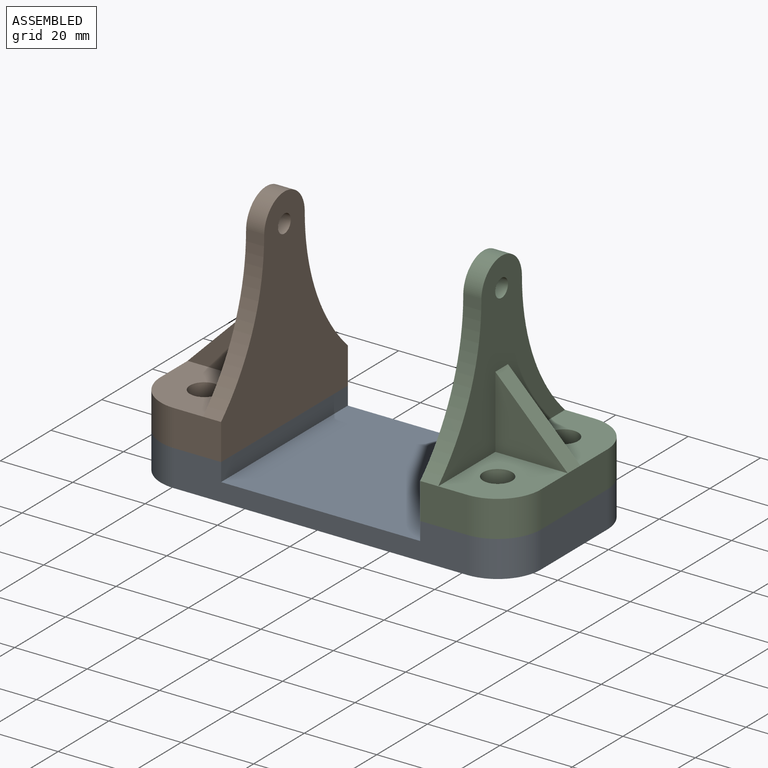
[diagram: assembled view]
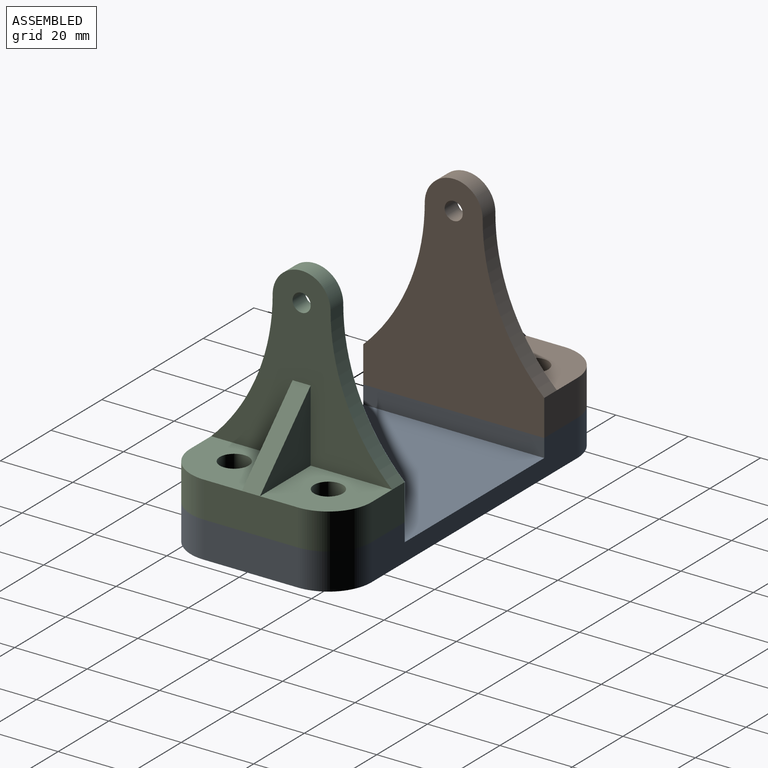
[diagram: assembled view, second angle]
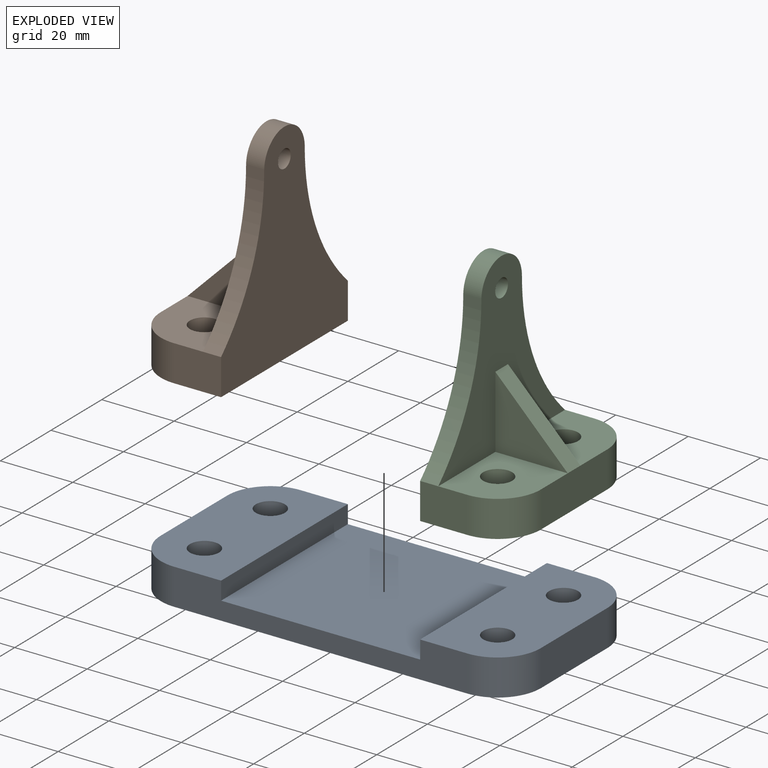
[diagram: exploded view]
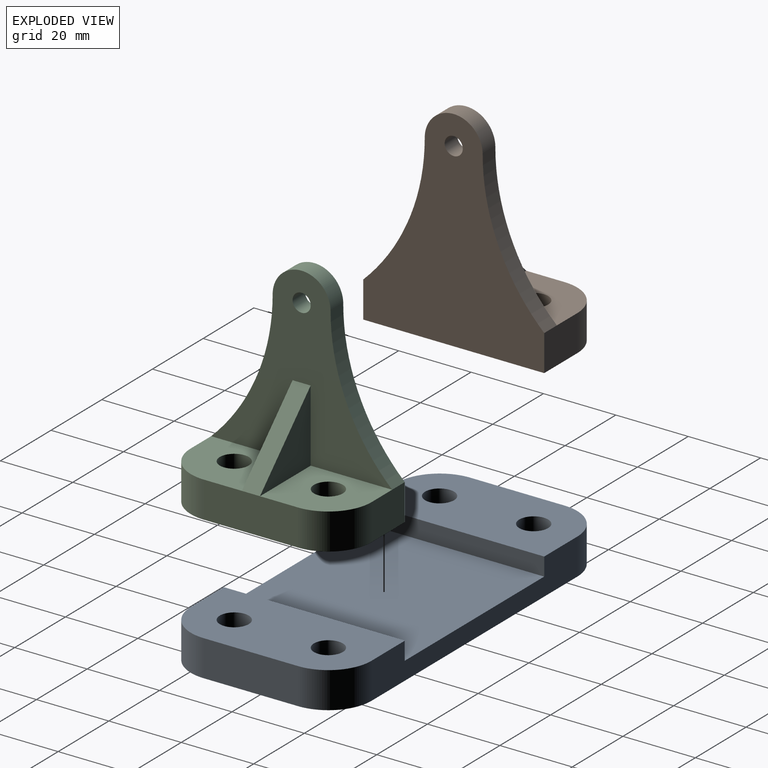
[diagram: exploded view, second angle]
FCSTD DOCUMENT  (FreeCAD 1.0R39319 (Git))
Label: Sub-assembly
License: All rights reserved
LicenseURL: https://en.wikipedia.org/wiki/All_rights_reserved
objects: App::Link×3, App::FeaturePython×3, Assembly::JointGroup×1, Assembly::AssemblyObject×1
EXTERNAL_REF file=Base.FCStd obj=Body
EXTERNAL_REF file=Base.FCStd obj=Body001

FEATURE [App::Link] Base
  LinkedObject = -> <external Base.FCStd>#Body
FEATURE [App::FeaturePython] Joint  label="Fixed"  # Assembly joint (typed FeaturePython)
  Activated = true
  AngleMax = 0
  AngleMin = 0
  Detach1 = false
  Detach2 = false
  Distance = 0
  Distance2 = 0
  EnableAngleMax = false
  EnableAngleMin = false
  EnableLengthMax = false
  EnableLengthMin = false
  JointType = 0 (Fixed)
  LengthMax = 0
  LengthMin = 0
  Offset2 = pos=(0,0,-10) rot=(0,0,-1;1.5708rad)
  Placement1 = pos=(-40.5,13,10) rot=(0,0,1;0rad)
  Placement2 = pos=(13,0.5,0) rot=(0,0,-1;1.5708rad)
  Reference1 = -> Assembly [Base.Edge24,Base.Edge24]
  Reference2 = -> Assembly [Bracket.?Edge23,Bracket.?Edge23]
FEATURE [App::Link] Bracket
  LinkPlacement = pos=(-40,0,10) rot=(0,0,1;1.5708rad)
  LinkedObject = -> <external Base.FCStd>#Body001
  Placement = pos=(-40,0,10) rot=(0,0,1;1.5708rad)
FEATURE [App::FeaturePython] GroundedJoint  # Assembly grounded joint (typed FeaturePython)
  ObjectToGround = -> Base
FEATURE [App::Link] Bracket001
  LinkPlacement = pos=(40,4e-16,10) rot=(0,0,1;4.71239rad)
  LinkedObject = -> <external Base.FCStd>#Body001
  Placement = pos=(40,4e-16,10) rot=(0,0,1;4.71239rad)
FEATURE [App::FeaturePython] Joint001  label="Fixed001"  # Assembly joint (typed FeaturePython)
  Activated = true
  AngleMax = 0
  AngleMin = 0
  Detach1 = false
  Detach2 = false
  Distance = 0
  Distance2 = 0
  EnableAngleMax = false
  EnableAngleMin = false
  EnableLengthMax = false
  EnableLengthMin = false
  JointType = 0 (Fixed)
  LengthMax = 0
  LengthMin = 0
  Offset2 = pos=(0,0,10) rot=(0,0,-1;1.5708rad)
  Placement1 = pos=(13,0.5,10) rot=(0,0,1;0rad)
  Placement2 = pos=(40.5,-13,20) rot=(0,0,-1;1.5708rad)
  Reference1 = -> Assembly [Bracket001.?Edge23,Bracket001.?Edge23]
  Reference2 = -> Assembly [Base.Edge42,Base.Edge42]
FEATURE [Assembly::JointGroup] Joints
  Group = -> [GroundedJoint,Joint,Joint001]
FEATURE [Assembly::AssemblyObject] Assembly
  Group = -> [Joints,Base,GroundedJoint,Bracket,Bracket001,Joint,Joint001]
  Origin = -> Origin
  Type = Assembly

RESOLVED EXTERNAL PARTS (link-assembly join: the EXTERNAL_REF files above that resolve inside this repo's crawl, each included once):
---- part Base.FCStd = doc fcstd_a2cf1fc287eb ----
FCSTD DOCUMENT  (FreeCAD 1.0R39319 (Git))
Label: Base
License: All rights reserved
LicenseURL: https://en.wikipedia.org/wiki/All_rights_reserved
objects: Sketcher::SketchObject×7, PartDesign::Pad×5, PartDesign::Body×3, PartDesign::Pocket×1
note: 35 computed .brp shape members not serialized (recipe doc carries the construction recipe); baked Part::Feature solids carry a one-line shape summary decoded from their .brp

FEATURE [Sketcher::SketchObject] Sketch
  ArcFitTolerance = 1e-06
  AttachmentSupport = -> [XY_Plane]
  FullyConstrained = true
  MakeInternals = false
  MapMode = 5
  sketch-geometry (14):
    g0: LineSegment StartX=-52.5 StartY=13 StartZ=0 EndX=-52.5 EndY=-13 EndZ=0
    g1: LineSegment StartX=-40.5 StartY=-25 StartZ=0 EndX=40.5 EndY=-25 EndZ=0
    g2: LineSegment StartX=52.5 StartY=-13 StartZ=0 EndX=52.5 EndY=13 EndZ=0
    g3: LineSegment StartX=40.5 StartY=25 StartZ=0 EndX=-40.5 EndY=25 EndZ=0
    g4: ArcOfCircle CenterX=-40.5 CenterY=13 CenterZ=0 NormalX=0 NormalY=0 NormalZ=1 AngleXU=0 Radius=12 StartAngle=1.5708 EndAngle=3.14159
    g5: ArcOfCircle CenterX=-40.5 CenterY=-13 CenterZ=0 NormalX=0 NormalY=0 NormalZ=1 AngleXU=0 Radius=12 StartAngle=3.14159 EndAngle=4.71239
    g6: ArcOfCircle CenterX=40.5 CenterY=-13 CenterZ=0 NormalX=0 NormalY=0 NormalZ=1 AngleXU=0 Radius=12 StartAngle=4.71239 EndAngle=6.28319
    g7: ArcOfCircle CenterX=40.5 CenterY=13 CenterZ=0 NormalX=0 NormalY=0 NormalZ=1 AngleXU=0 Radius=12 StartAngle=0 EndAngle=1.5708
    g8: GeomPoint [constr] X=-52.5 Y=25 Z=0
    g9: GeomPoint [constr] X=52.5 Y=-25 Z=0
    g10: Circle CenterX=-40.5 CenterY=13 CenterZ=0 NormalX=0 NormalY=0 NormalZ=1 AngleXU=0 Radius=4
    g11: Circle CenterX=40.5 CenterY=13 CenterZ=0 NormalX=0 NormalY=0 NormalZ=1 AngleXU=0 Radius=4
    g12: Circle CenterX=40.5 CenterY=-13 CenterZ=0 NormalX=0 NormalY=0 NormalZ=1 AngleXU=0 Radius=4
    g13: Circle CenterX=-40.5 CenterY=-13 CenterZ=0 NormalX=0 NormalY=0 NormalZ=1 AngleXU=0 Radius=4
  constraints (31):
    c: Tangent(g0,g4) = -1.5708
    c: Tangent(g0,g5) = -1.5708
    c: Tangent(g1,g5) = -1.5708
    c: Tangent(g1,g6) = -1.5708
    c: Tangent(g2,g6) = -1.5708
    c: Tangent(g2,g7) = -1.5708
    c: Tangent(g3,g7) = -1.5708
    c: Tangent(g3,g4) = -1.5708
    c: Vertical(g0)
    c: Vertical(g2)
    c: Horizontal(g1)
    c: Horizontal(g3)
    c: Equal(g4,g5)
    c: Equal(g5,g6)
    c: Equal(g6,g7)
    c: PointOnObject(g8,g0)
    c: PointOnObject(g8,g3)
    c: PointOnObject(g9,g1)
    c: PointOnObject(g9,g2)
    c: Symmetric(g4,g6,g-1)
    c: Distance(g2,g0) = 105
    c: Distance(g1,g3) = 50
    c: Radius(g4) = 12
    c: Coincident(g10,g4)
    c: Coincident(g11,g7)
    c: Coincident(g12,g6)
    c: Coincident(g13,g5)
    c: Equal(g10,g11)
    c: Equal(g10,g12)
    c: Equal(g10,g13)
    c: Diameter(g10) = 8
FEATURE [PartDesign::Pad] Pad
  Direction = (0,0,1)
  Length = 10
  Length2 = 10
  Profile = -> Sketch
  ReferenceAxis = -> Sketch [N_Axis]
  Refine = true
  Suppressed = false
  Type = 0
FEATURE [Sketcher::SketchObject] Sketch001
  ArcFitTolerance = 1e-06
  AttachmentSupport = -> [Pad]
  ExternalGeometry = -> [Pad]
  FullyConstrained = true
  MakeInternals = false
  MapMode = 5
  Placement = pos=(0,0,10) rot=(0,0,1;0rad)
  sketch-geometry (5):
    g0: LineSegment StartX=27.5 StartY=-25 StartZ=0 EndX=27.5 EndY=25 EndZ=0
    g1: LineSegment StartX=27.5 StartY=25 StartZ=0 EndX=-27.5 EndY=25 EndZ=0
    g2: LineSegment StartX=-27.5 StartY=25 StartZ=0 EndX=-27.5 EndY=-25 EndZ=0
    g3: LineSegment StartX=-27.5 StartY=-25 StartZ=0 EndX=27.5 EndY=-25 EndZ=0
    g4: GeomPoint [constr] X=0 Y=0 Z=0
  constraints (12):
    c: Coincident(g0,g1)
    c: Coincident(g1,g2)
    c: Coincident(g2,g3)
    c: Coincident(g3,g0)
    c: Vertical(g0)
    c: Vertical(g2)
    c: Horizontal(g1)
    c: Horizontal(g3)
    c: Symmetric(g2,g0,g4)
    c: Coincident(g4,g-1)
    c: PointOnObject(g1,g-3)
    c: Distance(g0,g2) = 55
FEATURE [PartDesign::Pocket] Pocket
  BaseFeature = -> Pad
  Direction = (0,0,-1)
  Length = 5
  Length2 = 5
  Profile = -> Sketch001
  ReferenceAxis = -> Sketch001 [N_Axis]
  Refine = true
  Suppressed = false
  Type = 0
FEATURE [PartDesign::Body] Body  label="Base"
  AllowCompound = false
  Group = -> [Sketch,Pad,Sketch001,Pocket]
  Origin = -> Origin
  Tip = -> Pocket
FEATURE [Sketcher::SketchObject] Sketch002
  ArcFitTolerance = 1e-06
  AttachmentSupport = -> [XY_Plane001]
  FullyConstrained = true
  MakeInternals = false
  MapMode = 5
  sketch-geometry (11):
    g0: LineSegment StartX=-25 StartY=-12.5 StartZ=0 EndX=25 EndY=-12.5 EndZ=0
    g1: LineSegment StartX=25 StartY=-12.5 StartZ=0 EndX=25 EndY=0.5 EndZ=0
    g2: LineSegment StartX=13 StartY=12.5 StartZ=0 EndX=-13 EndY=12.5 EndZ=0
    g3: LineSegment StartX=-25 StartY=0.5 StartZ=0 EndX=-25 EndY=-12.5 EndZ=0
    g4: GeomPoint [constr] X=0 Y=0 Z=0
    g5: ArcOfCircle CenterX=-13 CenterY=0.5 CenterZ=0 NormalX=0 NormalY=0 NormalZ=1 AngleXU=0 Radius=12 StartAngle=1.5708 EndAngle=3.14159
    g6: GeomPoint [constr] X=-25 Y=12.5 Z=0
    g7: ArcOfCircle CenterX=13 CenterY=0.5 CenterZ=0 NormalX=0 NormalY=0 NormalZ=1 AngleXU=0 Radius=12 StartAngle=0 EndAngle=1.5708
    g8: GeomPoint [constr] X=25 Y=12.5 Z=0
    g9: Circle CenterX=13 CenterY=0.5 CenterZ=0 NormalX=0 NormalY=0 NormalZ=1 AngleXU=0 Radius=4
    g10: Circle CenterX=-13 CenterY=0.5 CenterZ=0 NormalX=0 NormalY=0 NormalZ=1 AngleXU=0 Radius=4
  constraints (24):
    c: Coincident(g0,g1)
    c: Coincident(g3,g0)
    c: Horizontal(g0)
    c: Horizontal(g2)
    c: Vertical(g1)
    c: Vertical(g3)
    c: Symmetric(g8,g0,g4)
    c: Distance(g1,g3) = 50
    c: Distance(g0,g6) = 25
    c: Coincident(g4,g-1)
    c: PointOnObject(g6,g3)
    c: PointOnObject(g6,g2)
    c: Tangent(g3,g5) = -1.5708
    c: Tangent(g2,g5) = -1.5708
    c: PointOnObject(g8,g1)
    c: PointOnObject(g8,g2)
    c: Tangent(g1,g7) = -1.5708
    c: Tangent(g2,g7) = -1.5708
    c: Equal(g5,g7)
    c: Radius(g5) = 12
    c: Coincident(g9,g7)
    c: Coincident(g10,g5)
    c: Equal(g10,g9)
    c: Diameter(g10) = 8
FEATURE [PartDesign::Pad] Pad001
  Direction = (0,0,1)
  Length = 10
  Length2 = 10
  Profile = -> Sketch002
  ReferenceAxis = -> Sketch002 [N_Axis]
  Refine = true
  Suppressed = false
  Type = 0
FEATURE [Sketcher::SketchObject] Sketch003
  ArcFitTolerance = 1e-06
  AttachmentSupport = -> [Pad001]
  FullyConstrained = true
  MakeInternals = false
  MapMode = 5
  Placement = pos=(0,-12.5,0) rot=(1,0,0;1.5708rad)
FEATURE [Sketcher::SketchObject] Sketch004
  ArcFitTolerance = 1e-06
  AttachmentSupport = -> [Pad001]
  ExternalGeometry = -> [Pad001]
  FullyConstrained = true
  MakeInternals = false
  MapMode = 5
  Placement = pos=(0,-12.5,0) rot=(1,0,0;1.5708rad)
  sketch-geometry (5):
    g0: ArcOfCircle CenterX=-63.5588 CenterY=50 CenterZ=0 NormalX=0 NormalY=0 NormalZ=1 AngleXU=0 Radius=55.5588 StartAngle=5.47944 EndAngle=6.28319
    g1: ArcOfCircle CenterX=0 CenterY=50 CenterZ=0 NormalX=0 NormalY=0 NormalZ=1 AngleXU=0 Radius=8 StartAngle=0 EndAngle=3.14159
    g2: ArcOfCircle CenterX=63.5588 CenterY=50 CenterZ=0 NormalX=0 NormalY=0 NormalZ=1 AngleXU=0 Radius=55.5588 StartAngle=3.14159 EndAngle=3.94533
    g3: Circle CenterX=0 CenterY=50 CenterZ=0 NormalX=0 NormalY=0 NormalZ=1 AngleXU=0 Radius=2.5
    g4: LineSegment StartX=-25 StartY=10 StartZ=0 EndX=25 EndY=10 EndZ=0
  constraints (13):
    c: Tangent(g0,g1) = 1.5708
    c: Tangent(g1,g2) = 1.5708
    c: Coincident(g2,g-4)
    c: Coincident(g0,g-5)
    c: PointOnObject(g1,g-2)
    c: Equal(g0,g2)
    c: Radius(g1) = 8
    c: Coincident(g3,g1)
    c: Diameter(g3) = 5
    c: Horizontal(g0,g1)
    c: DistanceY(g-1,g1) = 50
    c: Coincident(g4,g0)
    c: Coincident(g4,g2)
FEATURE [PartDesign::Pad] Pad002
  BaseFeature = -> Pad001
  Direction = (0,-1,2e-16)
  Length = 5
  Length2 = 10
  Profile = -> Sketch004
  ReferenceAxis = -> Sketch004 [N_Axis]
  Refine = true
  Reversed = true
  Suppressed = false
  Type = 0
FEATURE [Sketcher::SketchObject] Sketch008
  ArcFitTolerance = 1e-06
  AttachmentSupport = -> [YZ_Plane001]
  ExternalGeometry = -> [Pad002]
  FullyConstrained = true
  MakeInternals = false
  MapMode = 5
  Placement = pos=(0,0,0) rot=(0.57735,0.57735,0.57735;2.0944rad)
  sketch-geometry (3):
    g0: LineSegment StartX=-7.5 StartY=10 StartZ=0 EndX=-7.5 EndY=30 EndZ=0
    g1: LineSegment StartX=12.5 StartY=10 StartZ=0 EndX=-7.5 EndY=30 EndZ=0
    g2: LineSegment StartX=12.5 StartY=10 StartZ=0 EndX=-7.5 EndY=10 EndZ=0
  constraints (7):
    c: Coincident(g0,g-3)
    c: PointOnObject(g0,g-3)
    c: Coincident(g1,g-4)
    c: Coincident(g1,g0)
    c: Coincident(g2,g1)
    c: Coincident(g2,g0)
    c: DistanceY(g0,g0) = 20
FEATURE [PartDesign::Pad] Pad004
  BaseFeature = -> Pad002
  Direction = (1,0,0)
  Length = 5
  Length2 = 10
  Midplane = true
  Profile = -> Sketch008
  ReferenceAxis = -> Sketch008 [N_Axis]
  Refine = true
  Suppressed = false
  Type = 0
FEATURE [PartDesign::Body] Body001  label="Bracket"
  AllowCompound = false
  Group = -> [Sketch002,Pad001,Sketch003,Sketch004,Pad002,Sketch008,Pad004]
  Origin = -> Origin001
  Tip = -> Pad004
FEATURE [Sketcher::SketchObject] Sketch009
  ArcFitTolerance = 1e-06
  AttachmentSupport = -> [XY_Plane002]
  FullyConstrained = true
  MakeInternals = false
  MapMode = 5
  sketch-geometry (6):
    g0: ArcOfCircle CenterX=0 CenterY=0 CenterZ=0 NormalX=0 NormalY=0 NormalZ=1 AngleXU=0 Radius=7 StartAngle=1e-16 EndAngle=3.14159
    g1: ArcOfCircle CenterX=2e-16 CenterY=-70 CenterZ=0 NormalX=0 NormalY=0 NormalZ=1 AngleXU=0 Radius=7 StartAngle=3.14159 EndAngle=6.28319
    g2: LineSegment StartX=7 StartY=9e-16 StartZ=0 EndX=7 EndY=-70 EndZ=0
    g3: LineSegment StartX=-7 StartY=0 StartZ=0 EndX=-7 EndY=-70 EndZ=0
    g4: Circle CenterX=0 CenterY=0 CenterZ=0 NormalX=0 NormalY=0 NormalZ=1 AngleXU=0 Radius=2.5
    g5: Circle CenterX=2e-16 CenterY=-70 CenterZ=0 NormalX=0 NormalY=0 NormalZ=1 AngleXU=0 Radius=2.5
  constraints (13):
    c: Tangent(g0,g2) = 1.5708
    c: Tangent(g0,g3) = -1.5708
    c: Tangent(g1,g2) = 1.5708
    c: Tangent(g1,g3) = -1.5708
    c: Equal(g0,g1)
    c: Vertical(g3)
    c: Coincident(g0,g-1)
    c: Coincident(g5,g1)
    c: Equal(g4,g5)
    c: Diameter(g4) = 5
    c: DistanceY(g1,g4) = 70
    c: Coincident(g0,g4)
    c: Radius(g0) = 7
FEATURE [PartDesign::Pad] Pad005
  Direction = (0,0,1)
  Length = 2.5
  Length2 = 10
  Midplane = true
  Profile = -> Sketch009
  ReferenceAxis = -> Sketch009 [N_Axis]
  Refine = true
  Suppressed = false
  Type = 0
FEATURE [PartDesign::Body] Body002  label="Links"
  AllowCompound = false
  Group = -> [Sketch009,Pad005]
  Origin = -> Origin002
  Tip = -> Pad005
